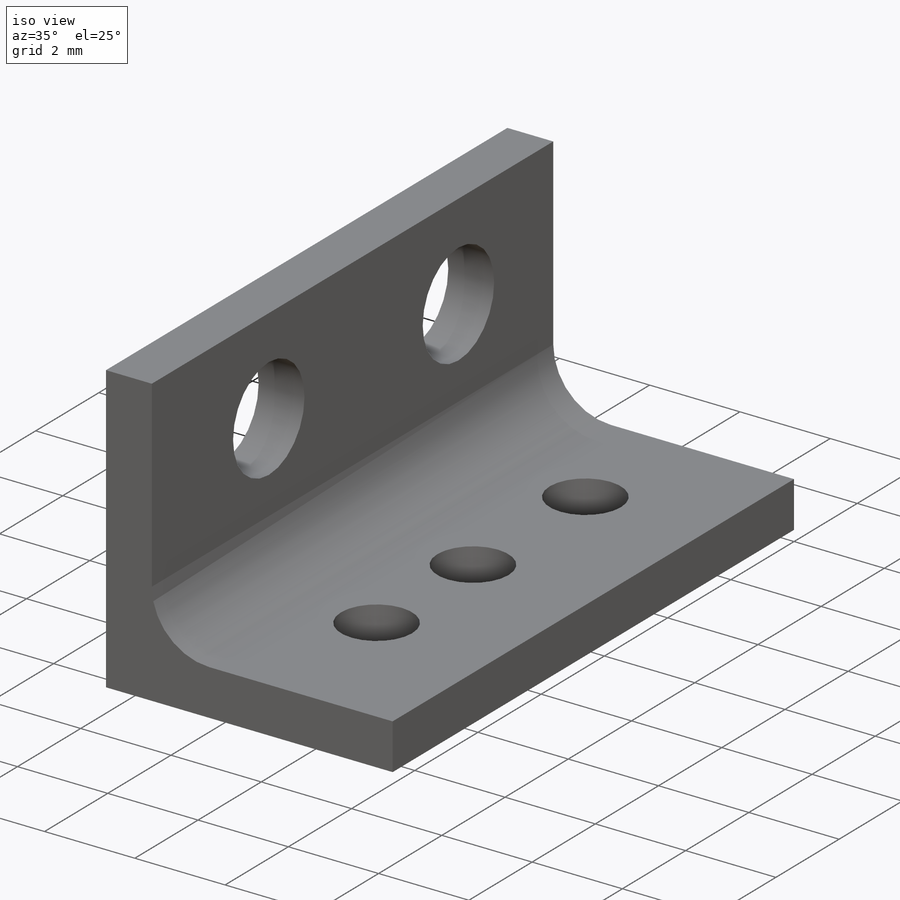
[diagram: iso view]
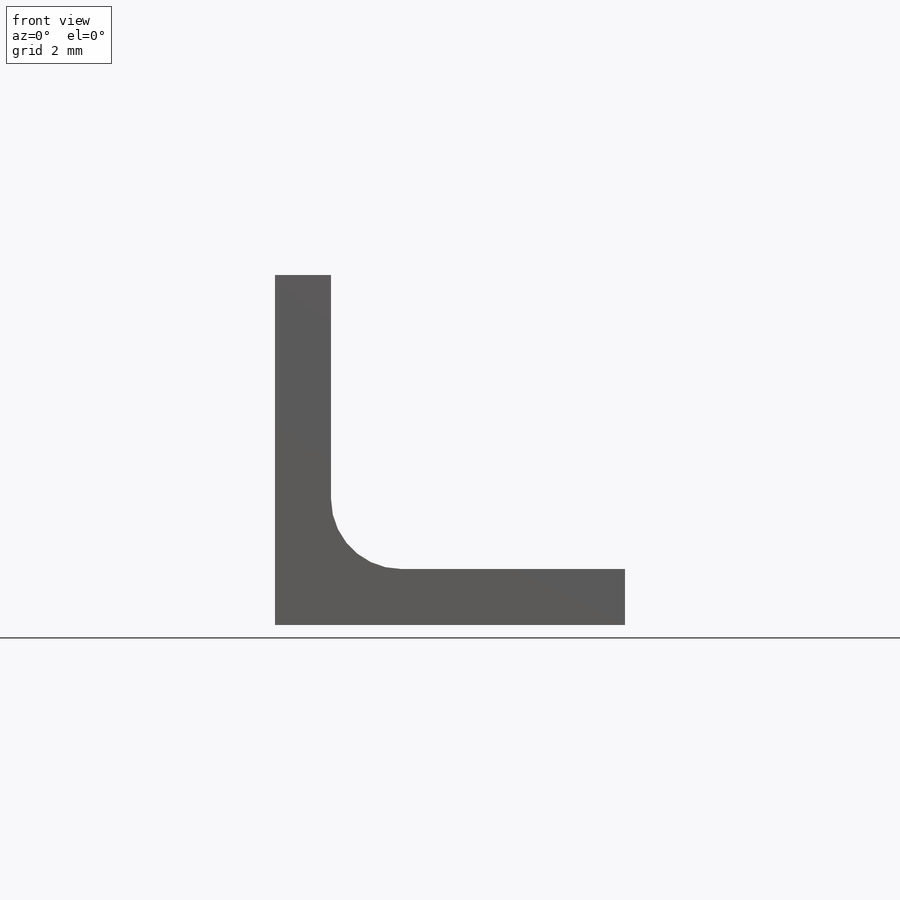
[diagram: front view]
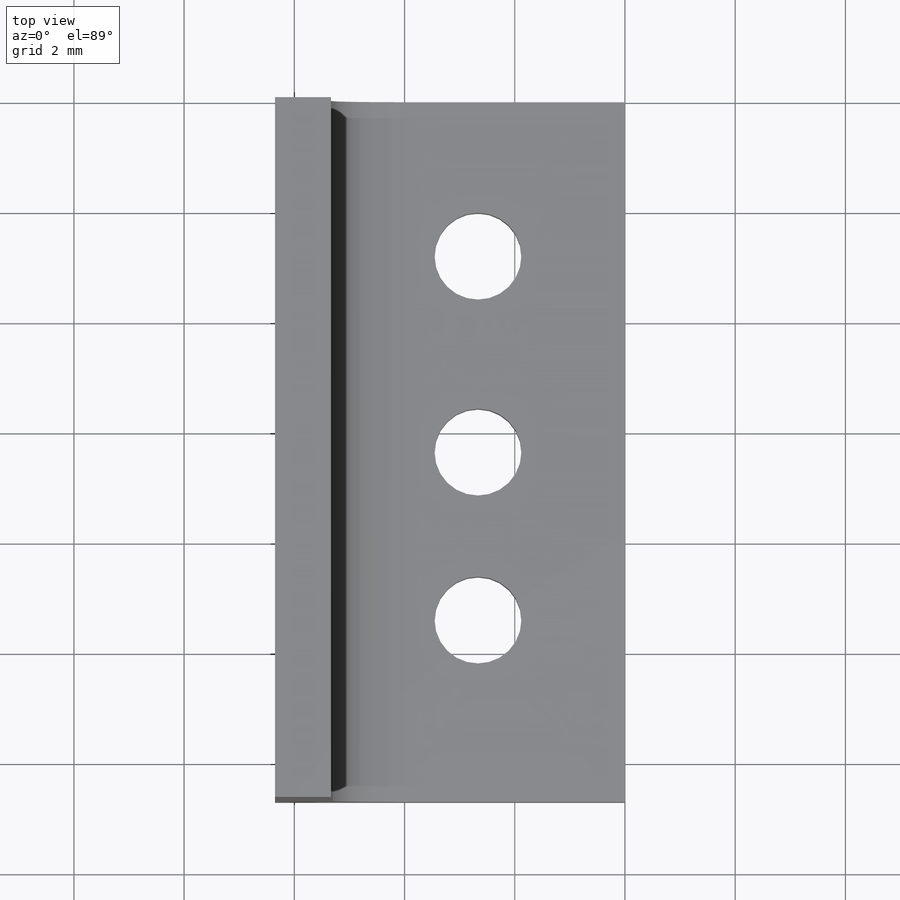
[diagram: top view]
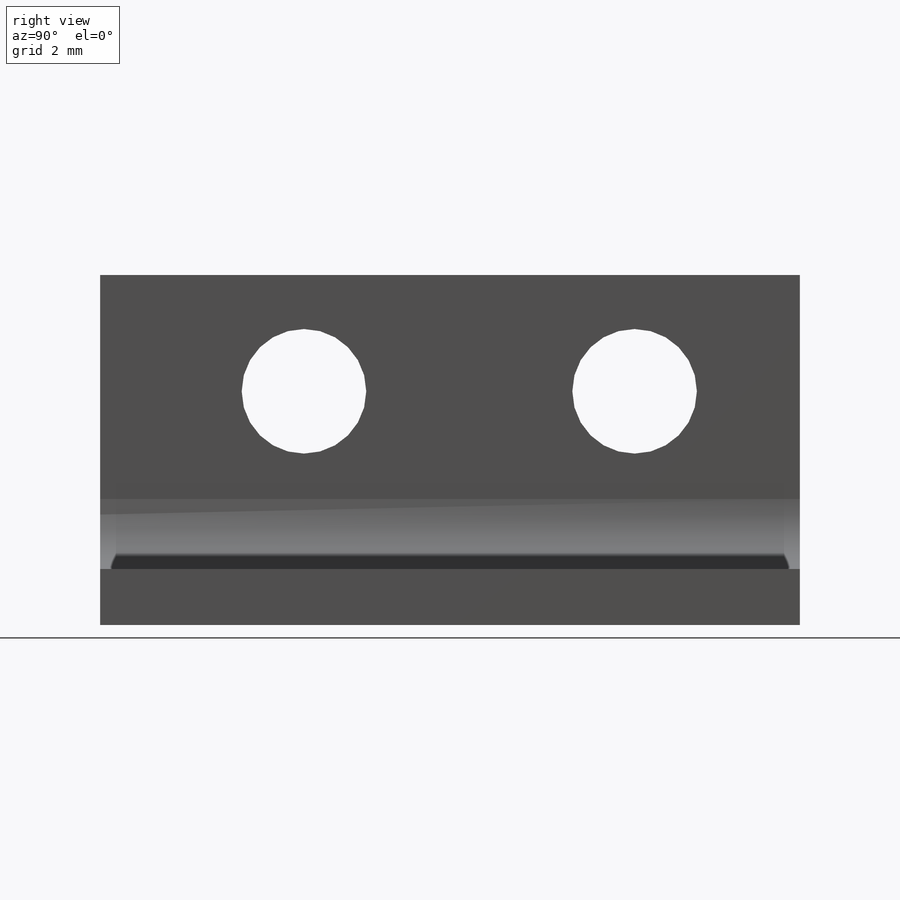
[diagram: right view]
SOLIDWORKS PART (.sldprt)
format: sldprt  version: not decoded by parser v0  size: 196,096 bytes
history: native  units: mm
features: sketch x3, cut_extrude x2, material x1, extrude x1, fillet x1 (+13 scaffold rows collapsed)
feature tree (21):
  scaffold x13  (default folders/planes/origin — collapsed)
  material  "Material <not specified>"
  sketch  "Sketch1"  dims[D1=6.35mm D2=6.35mm D3=1.016mm]
  extrude  "Boss-Extrude1"  Depth=12.7mm
  sketch  "Sketch3"  dims[c1.D1=1.5748mm c1.D2=1.5748mm c1.D3=1.5748mm c1.D4=1.5748mm c2.D2=3.556mm c2.D3=3.048mm c2.D4=2.54mm]
  cut_extrude  "Cut-Extrude1"  Depth=2.54mm
  fillet  "Fillet1"  Radius=1.27mm
  sketch  "Sketch4"  dims[c1.D1=~1.869668mm c1.D2=2.2606mm c1.D4=2.2606mm c2.D1=4.24mm c2.D3=3.0mm c2.D4=6.0mm c3.D3=3.0mm]
  cut_extrude  "Cut-Extrude2"  [1 undecoded]
decode coverage: 6 of 7 modeling features carry decoded parameters
note: ~ marks probable driven/reference dimensions
note: 1 parameter value undecoded
note: suppression state not decoded; provenance and decode notes live in map.json
